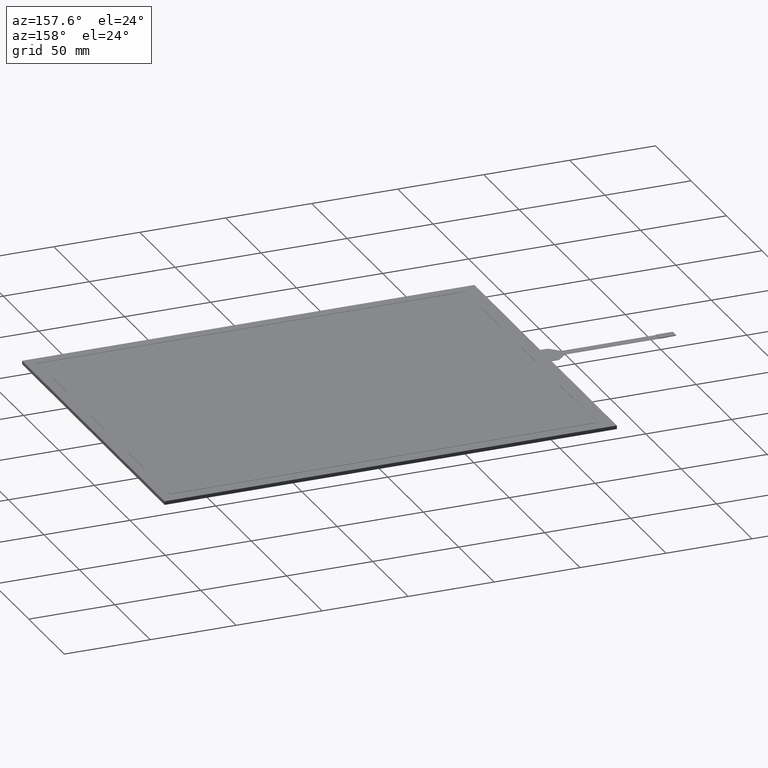
[diagram: clean part render]
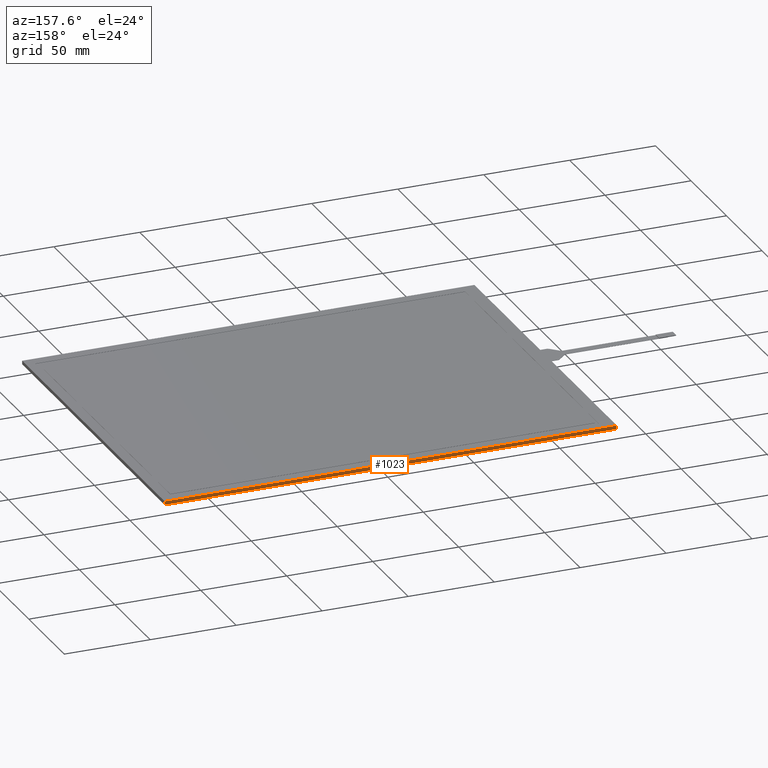
[diagram: same view with one face highlighted and labeled with its STEP entity id]
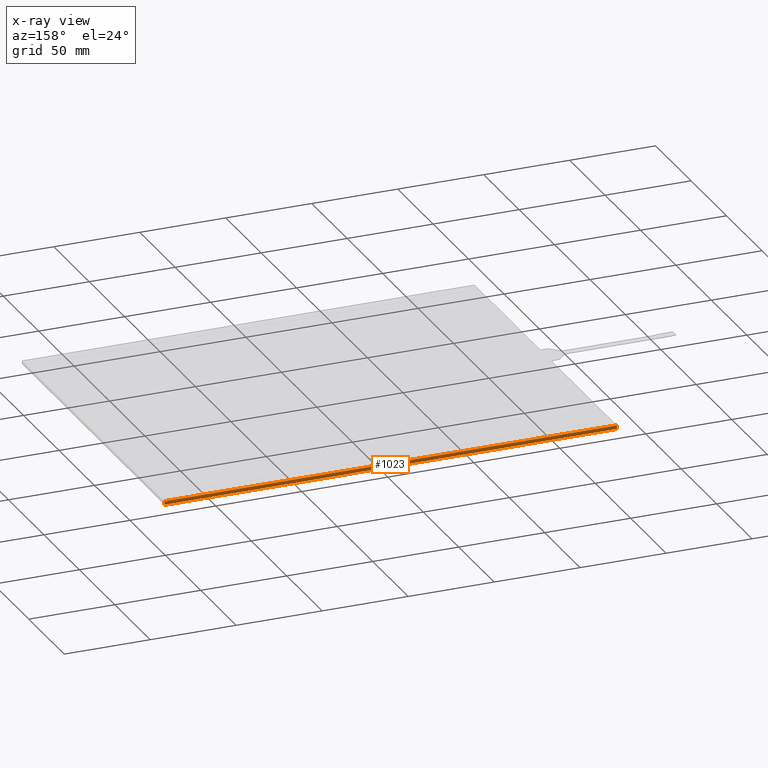
[diagram: x-ray of the same camera — body ghosted, the highlighted face saturated]
A machine part, auxiliary view. The second image highlights one B-rep face of the part: STEP entity #1023.
The next image is the same camera in x-ray: the body ghosted, the highlighted face saturated — about 0% of this face is hidden behind the body in this view.
In plain terms, the highlighted planar face has unit normal (0, 1, 0).
Its self-contained STEP definition (entity closure, byte-faithful):
#91=PLANE('',#1106);
#142=FACE_OUTER_BOUND('',#196,.T.);
#196=EDGE_LOOP('',(#957,#958,#959,#960));
#313=LINE('',#1621,#439);
#317=LINE('',#1629,#443);
#323=LINE('',#1640,#449);
#324=LINE('',#1642,#450);
#439=VECTOR('',#1339,10.);
#443=VECTOR('',#1345,10.);
#449=VECTOR('',#1355,10.);
#450=VECTOR('',#1358,10.);
#547=VERTEX_POINT('',#1619);
#548=VERTEX_POINT('',#1620);
#551=VERTEX_POINT('',#1628);
#554=VERTEX_POINT('',#1638);
#681=EDGE_CURVE('',#547,#548,#313,.T.);
#685=EDGE_CURVE('',#548,#551,#317,.T.);
#691=EDGE_CURVE('',#547,#554,#323,.T.);
#692=EDGE_CURVE('',#551,#554,#324,.T.);
#957=ORIENTED_EDGE('',*,*,#681,.F.);
#958=ORIENTED_EDGE('',*,*,#691,.T.);
#959=ORIENTED_EDGE('',*,*,#692,.F.);
#960=ORIENTED_EDGE('',*,*,#685,.F.);
#1023=ADVANCED_FACE('',(#142),#91,.T.);
#1106=AXIS2_PLACEMENT_3D('',#1641,#1356,#1357);
#1339=DIRECTION('',(-1.,0.,0.));
#1345=DIRECTION('',(0.,0.,-1.));
#1355=DIRECTION('',(0.,0.,-1.));
#1356=DIRECTION('center_axis',(0.,1.,0.));
#1357=DIRECTION('ref_axis',(1.,0.,0.));
#1358=DIRECTION('',(1.,0.,0.));
#1619=CARTESIAN_POINT('',(130.,100.5,0.));
#1620=CARTESIAN_POINT('',(-133.,100.5,0.));
#1621=CARTESIAN_POINT('',(130.,100.5,0.));
#1628=CARTESIAN_POINT('',(-133.,100.5,-2.1));
#1629=CARTESIAN_POINT('',(-133.,100.5,0.));
#1638=CARTESIAN_POINT('',(130.,100.5,-2.1));
#1640=CARTESIAN_POINT('',(130.,100.5,0.));
#1641=CARTESIAN_POINT('Origin',(-133.,100.5,0.));
#1642=CARTESIAN_POINT('',(130.,100.5,-2.1));